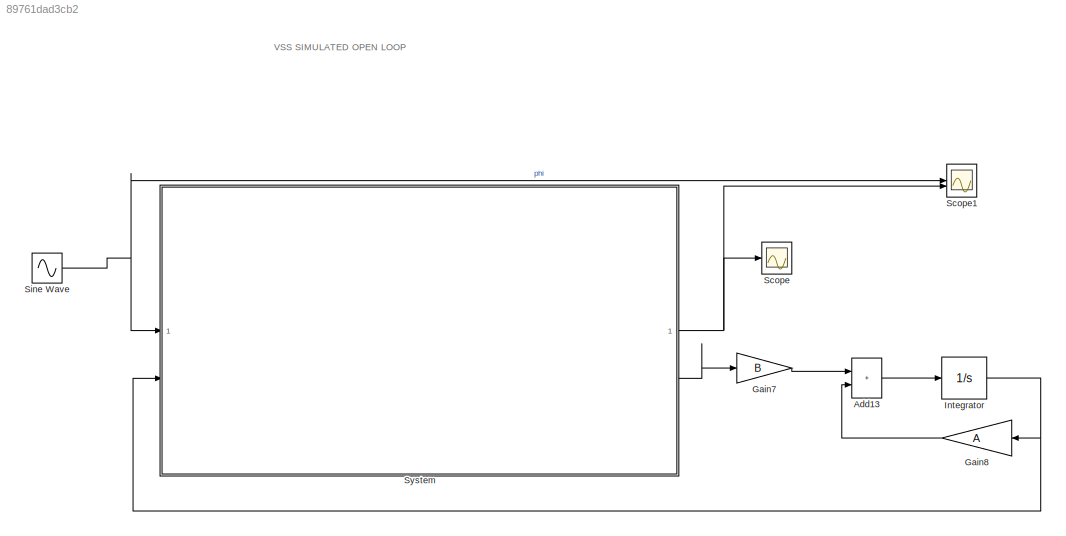
MODEL slx_89761dad3cb2
KIND model
CONFIG AbsTol = auto
CONFIG EnableMultiTasking = off
CONFIG FixedStep = 0.001
CONFIG MaxStep = auto
CONFIG MinStep = auto
CONFIG RelTol = 1e-7
CONFIG SampleTimeConstraint = Unconstrained
CONFIG SolverName = VariableStepAuto
CONFIG StartTime = 0.0
CONFIG StopTime = 10.0
BLOCK [Sum] Add13
  IconShape = rectangular
BLOCK [Gain] Gain7
  Gain = B
  Multiplication = Matrix(K*u)
BLOCK [Gain] Gain8
  Gain = A
  Multiplication = Matrix(K*u)
BLOCK [Integrator] Integrator
  InitialCondition = [0;0;-1.81;0;0;0]
BLOCK [Scope] Scope
  Floating = off
  NumInputPorts = 1
  ScopeSpecificationString = Simulink.scopes.TimeScopeBlockCfg('CurrentConfiguration', extmgr.ConfigurationSet(extmgr.Configuration('Core','General UI',true),extmgr.Configuration('Core','Source UI',true),extmgr.Configuration('Sources','WiredSimulink',true,'DataLoggingVariableName','ScopeData1'),extmgr.Configuration('Visuals','Time Domain',true,'TimeAxisLabels','All','SerializedDisplays',{struct('MinYLimReal','-1.85866','MaxYL...<+1558ch>
BLOCK [Scope] Scope1
  Floating = off
  NumInputPorts = 2
  ScopeSpecificationString = Simulink.scopes.TimeScopeBlockCfg('CurrentConfiguration', extmgr.ConfigurationSet(extmgr.Configuration('Core','General UI',true),extmgr.Configuration('Core','Source UI',true),extmgr.Configuration('Sources','WiredSimulink',true,'DataLoggingVariableName','ScopeData1'),extmgr.Configuration('Visuals','Time Domain',true,'TimeAxisLabels','All','SerializedDisplays',{struct('MinYLimReal','-2.25359','MaxYL...<+1612ch>
BLOCK [Sin] Sine Wave
  Amplitude = pi/2
  Frequency = 2*pi*0.5
  SampleTime = 0
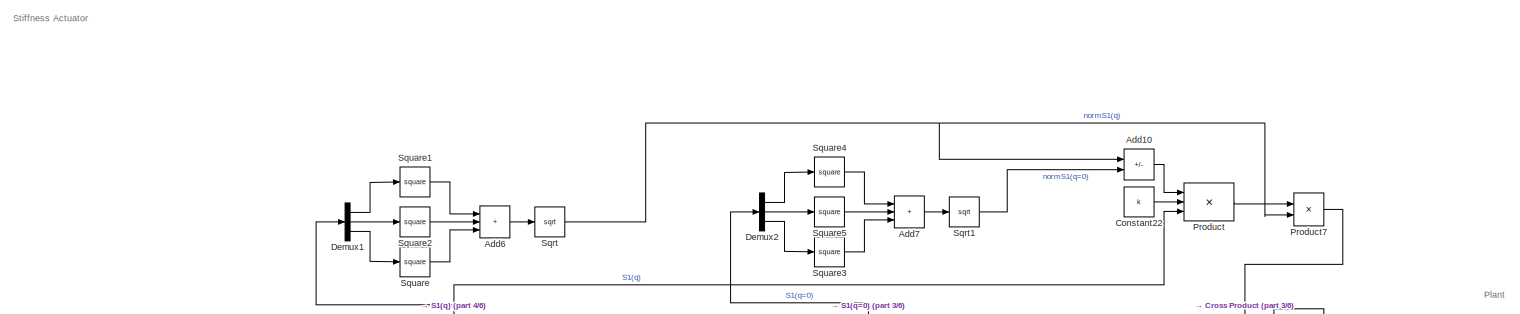
[diagram: System - part 1/6, top center region]
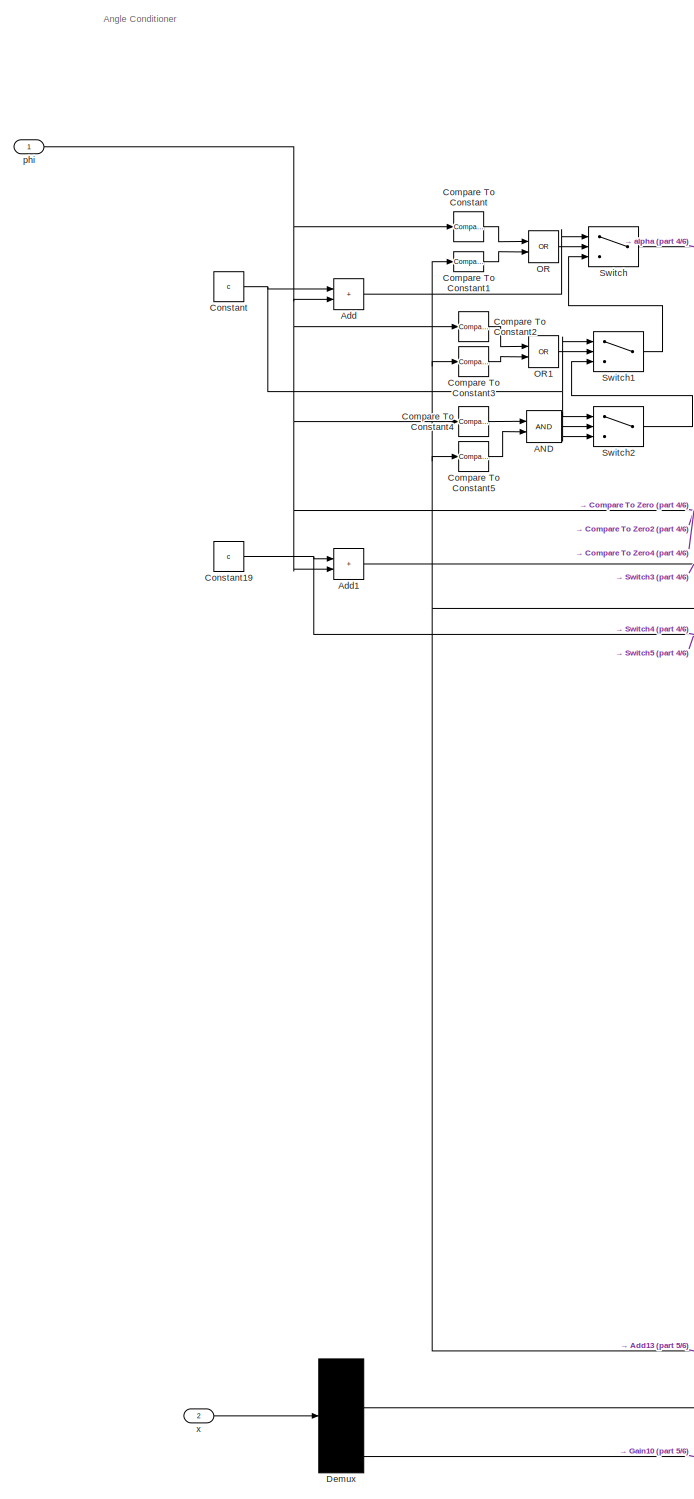
[diagram: System - part 2/6, left side, full height]
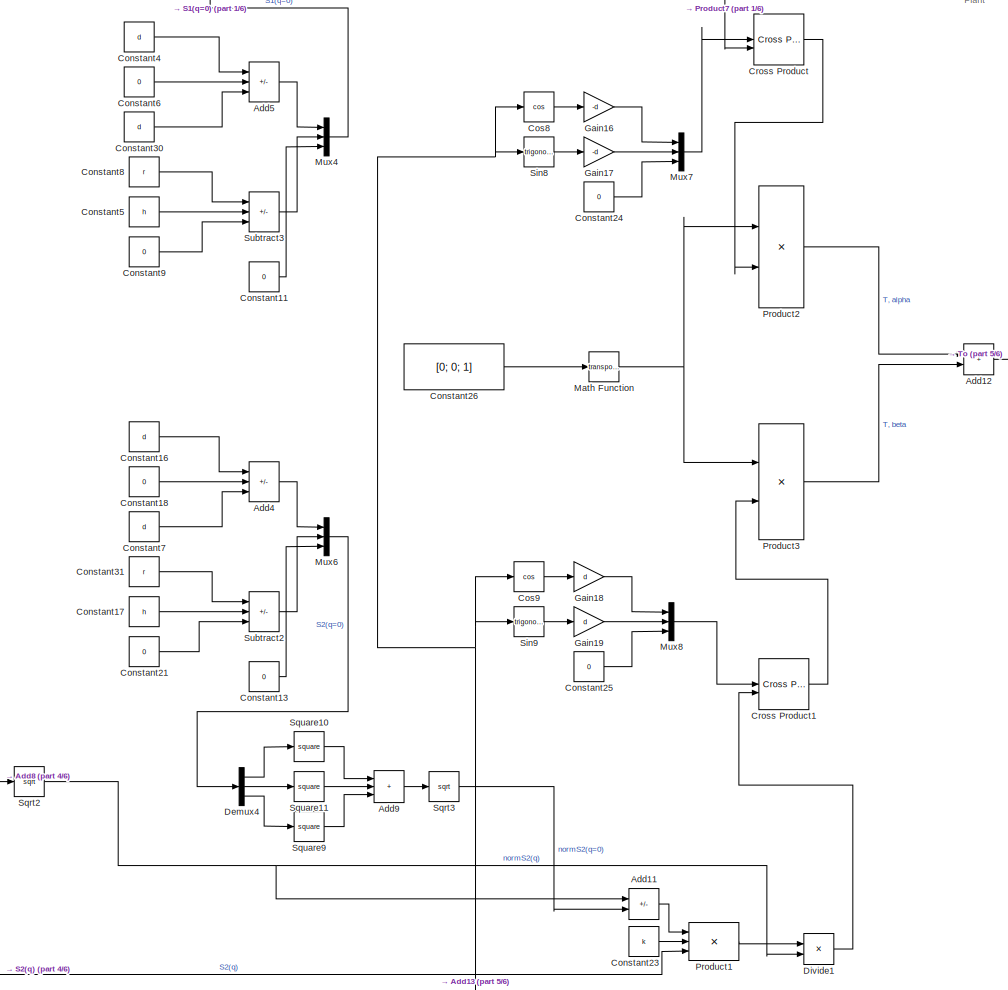
[diagram: System - part 3/6, central region]
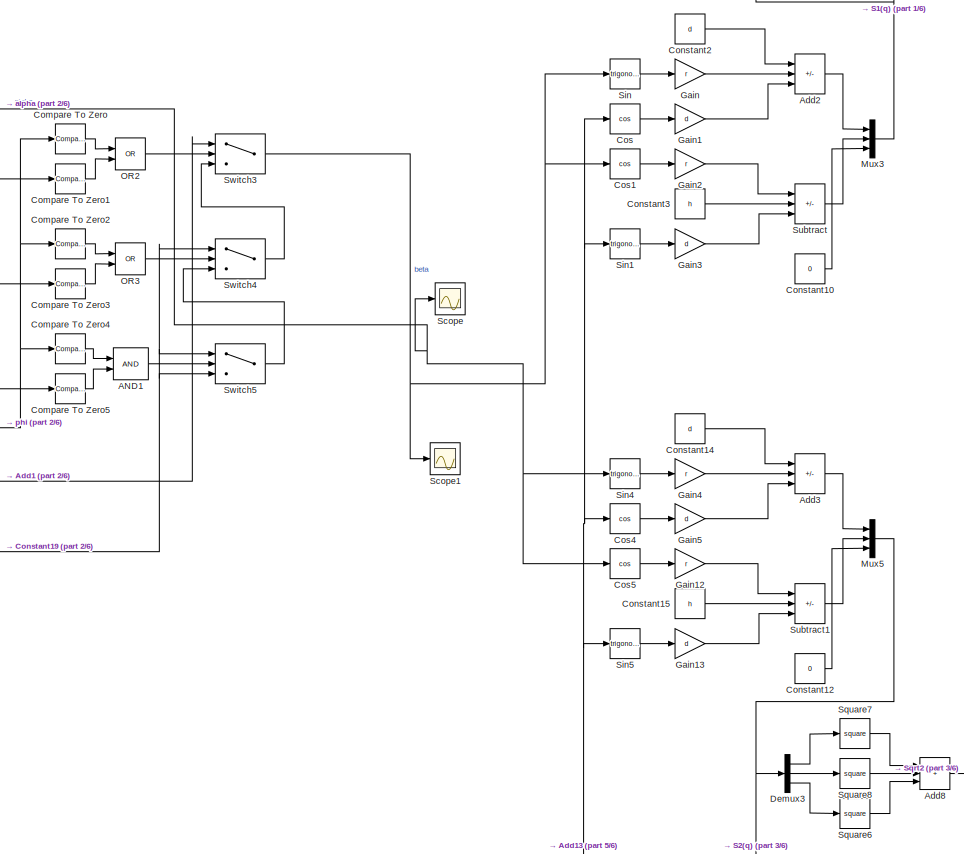
[diagram: System - part 4/6, central region]
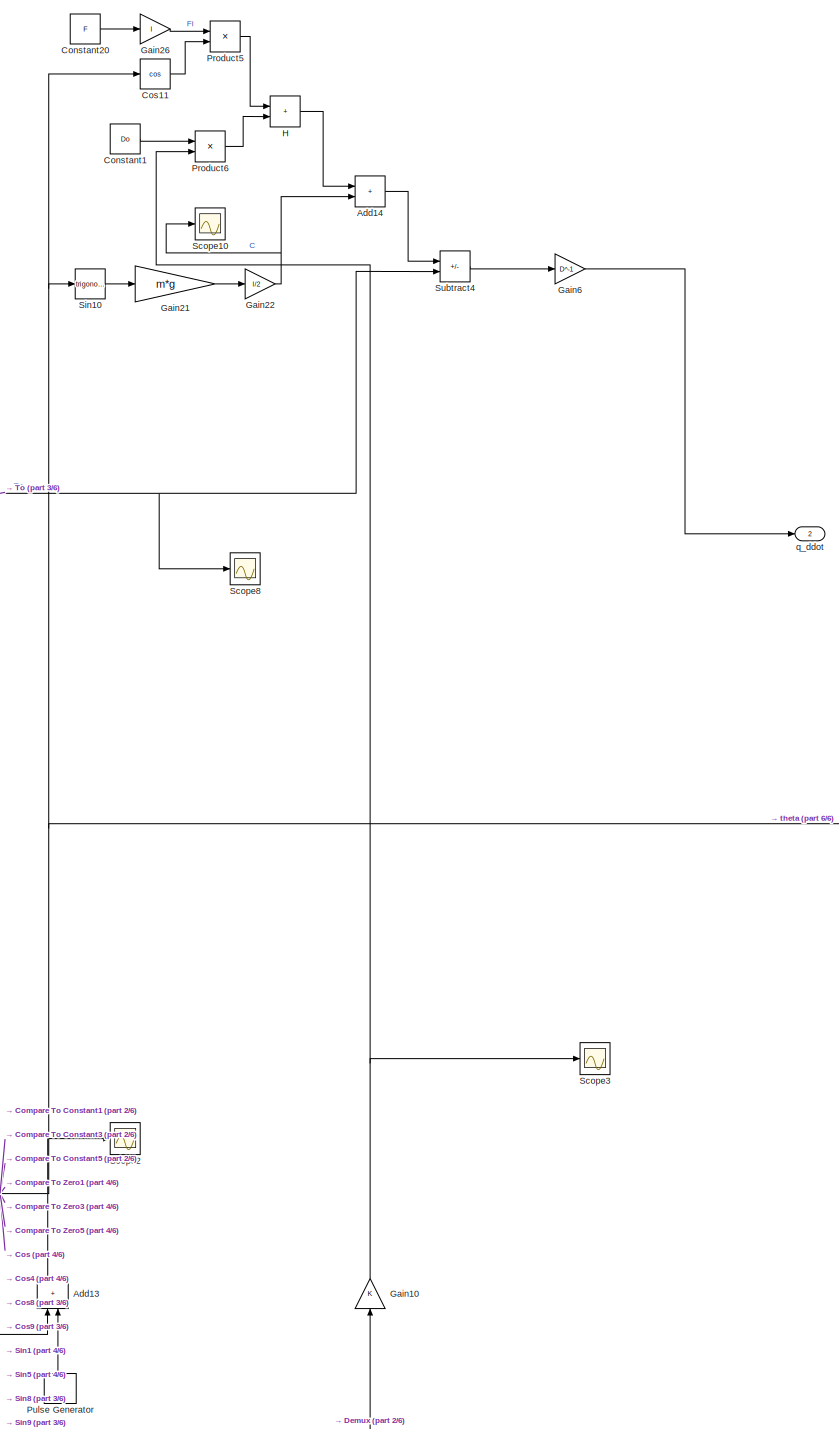
[diagram: System - part 5/6, middle right region]
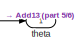
[diagram: System - part 6/6, middle right region]
BLOCK [SubSystem] System
BLOCK [Logic] System/AND
  AllPortsSameDT = off
  IconShape = distinctive
  OutDataTypeStr = boolean
BLOCK [Logic] System/AND1
  AllPortsSameDT = off
  IconShape = distinctive
  OutDataTypeStr = boolean
BLOCK [Sum] System/Add
  IconShape = rectangular
BLOCK [Sum] System/Add1
  IconShape = rectangular
BLOCK [Sum] System/Add10
  IconShape = rectangular
  Inputs = +-
BLOCK [Sum] System/Add11
  IconShape = rectangular
  Inputs = +-
BLOCK [Sum] System/Add12
  IconShape = rectangular
BLOCK [Sum] System/Add13
  IconShape = rectangular
  NameLocation = right
BLOCK [Sum] System/Add14
  IconShape = rectangular
BLOCK [Sum] System/Add2
  IconShape = rectangular
  Inputs = ++-
BLOCK [Sum] System/Add3
  IconShape = rectangular
  Inputs = --+
BLOCK [Sum] System/Add4
  IconShape = rectangular
  Inputs = --+
BLOCK [Sum] System/Add5
  IconShape = rectangular
  Inputs = ++-
BLOCK [Sum] System/Add6
  IconShape = rectangular
  Inputs = +++
BLOCK [Sum] System/Add7
  IconShape = rectangular
  Inputs = +++
BLOCK [Sum] System/Add8
  IconShape = rectangular
  Inputs = +++
BLOCK [Sum] System/Add9
  IconShape = rectangular
  Inputs = +++
BLOCK [Reference] System/Compare To Constant  REF=simulink/Logic and Bit
Operations/Compare
To Constant
  SourceBlock = simulink/Logic and Bit\nOperations/Compare\nTo Constant
  SourceType = Compare To Constant
BLOCK [Reference] System/Compare To Constant1  REF=simulink/Logic and Bit
Operations/Compare
To Constant
  SourceBlock = simulink/Logic and Bit\nOperations/Compare\nTo Constant
  SourceType = Compare To Constant
BLOCK [Reference] System/Compare To Constant2  REF=simulink/Logic and Bit
Operations/Compare
To Constant
  SourceBlock = simulink/Logic and Bit\nOperations/Compare\nTo Constant
  SourceType = Compare To Constant
BLOCK [Reference] System/Compare To Constant3  REF=simulink/Logic and Bit
Operations/Compare
To Constant
  SourceBlock = simulink/Logic and Bit\nOperations/Compare\nTo Constant
  SourceType = Compare To Constant
BLOCK [Reference] System/Compare To Constant4  REF=simulink/Logic and Bit
Operations/Compare
To Constant
  SourceBlock = simulink/Logic and Bit\nOperations/Compare\nTo Constant
  SourceType = Compare To Constant
BLOCK [Reference] System/Compare To Constant5  REF=simulink/Logic and Bit
Operations/Compare
To Constant
  SourceBlock = simulink/Logic and Bit\nOperations/Compare\nTo Constant
  SourceType = Compare To Constant
BLOCK [Reference] System/Compare To Zero  REF=simulink/Logic and Bit
Operations/Compare
To Zero
  SourceBlock = simulink/Logic and Bit\nOperations/Compare\nTo Zero
  SourceType = Compare To Zero
BLOCK [Reference] System/Compare To Zero1  REF=simulink/Logic and Bit
Operations/Compare
To Zero
  SourceBlock = simulink/Logic and Bit\nOperations/Compare\nTo Zero
  SourceType = Compare To Zero
BLOCK [Reference] System/Compare To Zero2  REF=simulink/Logic and Bit
Operations/Compare
To Zero
  SourceBlock = simulink/Logic and Bit\nOperations/Compare\nTo Zero
  SourceType = Compare To Zero
BLOCK [Reference] System/Compare To Zero3  REF=simulink/Logic and Bit
Operations/Compare
To Zero
  SourceBlock = simulink/Logic and Bit\nOperations/Compare\nTo Zero
  SourceType = Compare To Zero
BLOCK [Reference] System/Compare To Zero4  REF=simulink/Logic and Bit
Operations/Compare
To Zero
  SourceBlock = simulink/Logic and Bit\nOperations/Compare\nTo Zero
  SourceType = Compare To Zero
BLOCK [Reference] System/Compare To Zero5  REF=simulink/Logic and Bit
Operations/Compare
To Zero
  SourceBlock = simulink/Logic and Bit\nOperations/Compare\nTo Zero
  SourceType = Compare To Zero
BLOCK [Constant] System/Constant
  Value = c
BLOCK [Constant] System/Constant1
  Value = Do
BLOCK [Constant] System/Constant10
  Value = 0
BLOCK [Constant] System/Constant11
  Value = 0
BLOCK [Constant] System/Constant12
  Value = 0
BLOCK [Constant] System/Constant13
  Value = 0
BLOCK [Constant] System/Constant14
  Value = d
BLOCK [Constant] System/Constant15
  Value = h
BLOCK [Constant] System/Constant16
  Value = d
BLOCK [Constant] System/Constant17
  Value = h
BLOCK [Constant] System/Constant18
  Value = 0
BLOCK [Constant] System/Constant19
  Value = c
BLOCK [Constant] System/Constant2
  Value = d
BLOCK [Constant] System/Constant20
  Value = F
BLOCK [Constant] System/Constant21
  Value = 0
BLOCK [Constant] System/Constant22
  Value = k
BLOCK [Constant] System/Constant23
  Value = k
BLOCK [Constant] System/Constant24
  Value = 0
BLOCK [Constant] System/Constant25
  Value = 0
BLOCK [Constant] System/Constant26
  Value = [0; 0; 1]
BLOCK [Constant] System/Constant3
  Value = h
BLOCK [Constant] System/Constant30
  Value = d
BLOCK [Constant] System/Constant31
  Value = r
BLOCK [Constant] System/Constant4
  Value = d
BLOCK [Constant] System/Constant5
  Value = h
BLOCK [Constant] System/Constant6
  Value = 0
BLOCK [Constant] System/Constant7
  Value = d
BLOCK [Constant] System/Constant8
  Value = r
BLOCK [Constant] System/Constant9
  Value = 0
BLOCK [Trigonometry] System/Cos
  Operator = cos
BLOCK [Trigonometry] System/Cos1
  Operator = cos
BLOCK [Trigonometry] System/Cos11
  Operator = cos
BLOCK [Trigonometry] System/Cos4
  Operator = cos
BLOCK [Trigonometry] System/Cos5
  Operator = cos
BLOCK [Trigonometry] System/Cos8
  Operator = cos
BLOCK [Trigonometry] System/Cos9
  Operator = cos
BLOCK [Reference] System/Cross Product  REF=matrix_library/Cross Product
  LibrarySourceBlock = simulink/Matrix\nOperations/Cross Product
  SourceBlock = matrix_library/Cross Product
  SourceType = CrossProduct
BLOCK [Reference] System/Cross Product1  REF=matrix_library/Cross Product
  LibrarySourceBlock = simulink/Matrix\nOperations/Cross Product
  SourceBlock = matrix_library/Cross Product
  SourceType = CrossProduct
BLOCK [Demux] System/Demux
  Outputs = 6
BLOCK [Demux] System/Demux1
  Outputs = 3
BLOCK [Demux] System/Demux2
  Outputs = 3
BLOCK [Demux] System/Demux3
  Outputs = 3
BLOCK [Demux] System/Demux4
  Outputs = 3
BLOCK [Product] System/Divide1
  Inputs = */
BLOCK [Gain] System/Gain
  Gain = r
BLOCK [Gain] System/Gain1
  Gain = d
BLOCK [Gain] System/Gain10
  NameLocation = left
BLOCK [Gain] System/Gain12
  Gain = r
BLOCK [Gain] System/Gain13
  Gain = d
BLOCK [Gain] System/Gain16
  Gain = -d
BLOCK [Gain] System/Gain17
  Gain = -d
BLOCK [Gain] System/Gain18
  Gain = d
BLOCK [Gain] System/Gain19
  Gain = d
BLOCK [Gain] System/Gain2
  Gain = r
BLOCK [Gain] System/Gain21
  Gain = m*g
BLOCK [Gain] System/Gain22
  Gain = l/2
BLOCK [Gain] System/Gain26
  Gain = l
BLOCK [Gain] System/Gain3
  Gain = d
BLOCK [Gain] System/Gain4
  Gain = r
BLOCK [Gain] System/Gain5
  Gain = d
BLOCK [Gain] System/Gain6
  Gain = D^-1
BLOCK [Sum] System/H
  IconShape = rectangular
BLOCK [Math] System/Math Function
  Operator = transpose
BLOCK [Mux] System/Mux3
  DisplayOption = bar
  Inputs = 3
BLOCK [Mux] System/Mux4
  DisplayOption = bar
  Inputs = 3
BLOCK [Mux] System/Mux5
  DisplayOption = bar
  Inputs = 3
BLOCK [Mux] System/Mux6
  DisplayOption = bar
  Inputs = 3
BLOCK [Mux] System/Mux7
  DisplayOption = bar
  Inputs = 3
BLOCK [Mux] System/Mux8
  DisplayOption = bar
  Inputs = 3
BLOCK [Logic] System/OR
  AllPortsSameDT = off
  IconShape = distinctive
  Operator = OR
  OutDataTypeStr = boolean
BLOCK [Logic] System/OR1
  AllPortsSameDT = off
  IconShape = distinctive
  Operator = OR
  OutDataTypeStr = boolean
BLOCK [Logic] System/OR2
  AllPortsSameDT = off
  IconShape = distinctive
  Operator = OR
  OutDataTypeStr = boolean
BLOCK [Logic] System/OR3
  AllPortsSameDT = off
  IconShape = distinctive
  Operator = OR
  OutDataTypeStr = boolean
BLOCK [Product] System/Product
  Inputs = 3
BLOCK [Product] System/Product1
  Inputs = 3
BLOCK [Product] System/Product2
  Multiplication = Matrix(*)
BLOCK [Product] System/Product3
  Multiplication = Matrix(*)
BLOCK [Product] System/Product5
BLOCK [Product] System/Product6
BLOCK [Product] System/Product7
  Inputs = */
BLOCK [DiscretePulseGenerator] System/Pulse Generator
  Amplitude = 0.02
  NameLocation = right
  Period = 2.5
  PulseType = Time based
  PulseWidth = 0.5
BLOCK [Scope] System/Scope
  Floating = off
  NumInputPorts = 1
  ScopeSpecificationString = Simulink.scopes.TimeScopeBlockCfg('CurrentConfiguration', extmgr.ConfigurationSet(extmgr.Configuration('Core','General UI',true),extmgr.Configuration('Core','Source UI',true),extmgr.Configuration('Sources','WiredSimulink',true,'DataLoggingVariableName','ScopeData3'),extmgr.Configuration('Visuals','Time Domain',true,'SerializedDisplays',{struct('MinYLimReal','1.20016','MaxYLimReal','3.1612','YLabel...<+1477ch>
BLOCK [Scope] System/Scope1
  Floating = off
  NumInputPorts = 1
  ScopeSpecificationString = Simulink.scopes.TimeScopeBlockCfg('CurrentConfiguration', extmgr.ConfigurationSet(extmgr.Configuration('Core','General UI',true),extmgr.Configuration('Core','Source UI',true),extmgr.Configuration('Sources','WiredSimulink',true,'DataLoggingVariableName','ScopeData4'),extmgr.Configuration('Visuals','Time Domain',true,'SerializedDisplays',{struct('MinYLimReal','-0.37087','MaxYLimReal','1.59261','YLab...<+1482ch>
BLOCK [Scope] System/Scope10
  Floating = off
  NumInputPorts = 1
  ScopeSpecificationString = Simulink.scopes.TimeScopeBlockCfg('CurrentConfiguration', extmgr.ConfigurationSet(extmgr.Configuration('Core','General UI',true),extmgr.Configuration('Core','Source UI',true),extmgr.Configuration('Sources','WiredSimulink',true,'DataLoggingVariableName','ScopeData8'),extmgr.Configuration('Visuals','Time Domain',true,'SerializedDisplays',{struct('MinYLimReal','-0.0000025','MaxYLimReal','0.0000061','...<+1500ch>
BLOCK [Scope] System/Scope2
  Floating = off
  NumInputPorts = 1
  ScopeSpecificationString = Simulink.scopes.TimeScopeBlockCfg('CurrentConfiguration', extmgr.ConfigurationSet(extmgr.Configuration('Core','General UI',true),extmgr.Configuration('Core','Source UI',true),extmgr.Configuration('Sources','WiredSimulink',true,'DataLoggingVariableName','ScopeData1'),extmgr.Configuration('Visuals','Time Domain',true,'SerializedDisplays',{struct('MinYLimReal','-1.00000','MaxYLimReal','1.00000','YLab...<+1483ch>
BLOCK [Scope] System/Scope3
  Floating = off
  NumInputPorts = 1
  ScopeSpecificationString = Simulink.scopes.TimeScopeBlockCfg('CurrentConfiguration', extmgr.ConfigurationSet(extmgr.Configuration('Core','General UI',true),extmgr.Configuration('Core','Source UI',true),extmgr.Configuration('Sources','WiredSimulink',true,'DataLoggingVariableName','ScopeData2'),extmgr.Configuration('Visuals','Time Domain',true,'SerializedDisplays',{struct('MinYLimReal','-1.00000','MaxYLimReal','1.00000','YLab...<+1484ch>
BLOCK [Scope] System/Scope8
  Floating = off
  NumInputPorts = 1
  ScopeSpecificationString = Simulink.scopes.TimeScopeBlockCfg('CurrentConfiguration', extmgr.ConfigurationSet(extmgr.Configuration('Core','General UI',true),extmgr.Configuration('Core','Source UI',true),extmgr.Configuration('Sources','WiredSimulink',true,'DataLoggingVariableName','ScopeData6'),extmgr.Configuration('Visuals','Time Domain',true,'TimeAxisLabels','All','SerializedDisplays',{struct('MinYLimReal','-0.00741','MaxYL...<+1550ch>
BLOCK [Trigonometry] System/Sin
BLOCK [Trigonometry] System/Sin1
BLOCK [Trigonometry] System/Sin10
BLOCK [Trigonometry] System/Sin4
BLOCK [Trigonometry] System/Sin5
BLOCK [Trigonometry] System/Sin8
BLOCK [Trigonometry] System/Sin9
BLOCK [Sqrt] System/Sqrt
BLOCK [Sqrt] System/Sqrt1
BLOCK [Sqrt] System/Sqrt2
BLOCK [Sqrt] System/Sqrt3
BLOCK [Math] System/Square
  Operator = square
BLOCK [Math] System/Square1
  Operator = square
BLOCK [Math] System/Square10
  Operator = square
BLOCK [Math] System/Square11
  Operator = square
BLOCK [Math] System/Square2
  Operator = square
BLOCK [Math] System/Square3
  Operator = square
BLOCK [Math] System/Square4
  Operator = square
BLOCK [Math] System/Square5
  Operator = square
BLOCK [Math] System/Square6
  Operator = square
BLOCK [Math] System/Square7
  Operator = square
BLOCK [Math] System/Square8
  Operator = square
BLOCK [Math] System/Square9
  Operator = square
BLOCK [Sum] System/Subtract
  IconShape = rectangular
  Inputs = ---
BLOCK [Sum] System/Subtract1
  IconShape = rectangular
  Inputs = --+
BLOCK [Sum] System/Subtract2
  IconShape = rectangular
  Inputs = --+
BLOCK [Sum] System/Subtract3
  IconShape = rectangular
  Inputs = ---
BLOCK [Sum] System/Subtract4
  IconShape = rectangular
  Inputs = -+
BLOCK [Switch] System/Switch
  Criteria = u2 > Threshold
  InputSameDT = off
  SaturateOnIntegerOverflow = off
  Threshold = 0.5
BLOCK [Switch] System/Switch1
  Criteria = u2 > Threshold
  InputSameDT = off
  SaturateOnIntegerOverflow = off
  Threshold = 0.5
BLOCK [Switch] System/Switch2
  Criteria = u2 > Threshold
  InputSameDT = off
  SaturateOnIntegerOverflow = off
  Threshold = 0.5
BLOCK [Switch] System/Switch3
  Criteria = u2 > Threshold
  InputSameDT = off
  SaturateOnIntegerOverflow = off
  Threshold = 0.5
BLOCK [Switch] System/Switch4
  Criteria = u2 > Threshold
  InputSameDT = off
  SaturateOnIntegerOverflow = off
  Threshold = 0.5
BLOCK [Switch] System/Switch5
  Criteria = u2 > Threshold
  InputSameDT = off
  SaturateOnIntegerOverflow = off
  Threshold = 0.5
BLOCK [Inport] System/phi
BLOCK [Outport] System/q_ddot
  Port = 2
BLOCK [Outport] System/theta
BLOCK [Inport] System/x
  Port = 2
ANNOTATION (root): VSS SIMULATED OPEN LOOP
ANNOTATION System: Angle Conditioner
ANNOTATION System: Plant
ANNOTATION System: Stiffness Actuator
LINE Add13:1 -> Integrator:1
LINE Gain7:1 -> Add13:1
LINE Gain8:1 -> Add13:2
NET Integrator:1 -> Gain8:1, System:2
NET Sine Wave:1 -> Scope1:1, System:1
LINE System/AND1:1 -> System/Switch5:2
LINE System/AND:1 -> System/Switch2:2
LINE System/Add10:1 -> System/Product:1
LINE System/Add11:1 -> System/Product1:1
NET System/Add12:1 -> System/Scope8:1, System/Subtract4:2
NET System/Add13:1 -> System/Compare To Constant1:1, System/Compare To Constant3:1, System/Compare To Constant5:1, System/Compare To Zero1:1, System/Compare To Zero3:1, System/Compare To Zero5:1, System/Cos11:1, System/Cos4:1, System/Cos8:1, System/Cos9:1, System/Cos:1, System/Scope2:1, System/Sin10:1, System/Sin1:1, System/Sin5:1, System/Sin8:1, System/Sin9:1, System/theta:1
LINE System/Add14:1 -> System/Subtract4:1
LINE System/Add1:1 -> System/Switch3:1
LINE System/Add2:1 -> System/Mux3:1
LINE System/Add3:1 -> System/Mux5:1
LINE System/Add4:1 -> System/Mux6:1
LINE System/Add5:1 -> System/Mux4:1
LINE System/Add6:1 -> System/Sqrt:1
LINE System/Add7:1 -> System/Sqrt1:1
LINE System/Add8:1 -> System/Sqrt2:1
LINE System/Add9:1 -> System/Sqrt3:1
LINE System/Add:1 -> System/Switch:1
LINE System/Compare To Constant1:1 -> System/OR:2
LINE System/Compare To Constant2:1 -> System/OR1:1
LINE System/Compare To Constant3:1 -> System/OR1:2
LINE System/Compare To Constant4:1 -> System/AND:1
LINE System/Compare To Constant5:1 -> System/AND:2
LINE System/Compare To Constant:1 -> System/OR:1
LINE System/Compare To Zero1:1 -> System/OR2:2
LINE System/Compare To Zero2:1 -> System/OR3:1
LINE System/Compare To Zero3:1 -> System/OR3:2
LINE System/Compare To Zero4:1 -> System/AND1:1
LINE System/Compare To Zero5:1 -> System/AND1:2
LINE System/Compare To Zero:1 -> System/OR2:1
LINE System/Constant10:1 -> System/Mux3:3
LINE System/Constant11:1 -> System/Mux4:3
LINE System/Constant12:1 -> System/Mux5:3
LINE System/Constant13:1 -> System/Mux6:3
LINE System/Constant14:1 -> System/Add3:1
LINE System/Constant15:1 -> System/Subtract1:2
LINE System/Constant16:1 -> System/Add4:1
LINE System/Constant17:1 -> System/Subtract2:2
LINE System/Constant18:1 -> System/Add4:2
NET System/Constant19:1 -> System/Add1:1, System/Switch4:1, System/Switch5:1, System/Switch5:3
LINE System/Constant1:1 -> System/Product6:1
LINE System/Constant20:1 -> System/Gain26:1
LINE System/Constant21:1 -> System/Subtract2:3
LINE System/Constant22:1 -> System/Product:2
LINE System/Constant23:1 -> System/Product1:2
LINE System/Constant24:1 -> System/Mux7:3
LINE System/Constant25:1 -> System/Mux8:3
LINE System/Constant26:1 -> System/Math Function:1
LINE System/Constant2:1 -> System/Add2:1
LINE System/Constant30:1 -> System/Add5:3
LINE System/Constant31:1 -> System/Subtract2:1
LINE System/Constant3:1 -> System/Subtract:2
LINE System/Constant4:1 -> System/Add5:1
LINE System/Constant5:1 -> System/Subtract3:2
LINE System/Constant6:1 -> System/Add5:2
LINE System/Constant7:1 -> System/Add4:3
LINE System/Constant8:1 -> System/Subtract3:1
LINE System/Constant9:1 -> System/Subtract3:3
NET System/Constant:1 -> System/Add:1, System/Switch1:1, System/Switch2:1, System/Switch2:3
LINE System/Cos11:1 -> System/Product5:2
LINE System/Cos1:1 -> System/Gain2:1
LINE System/Cos4:1 -> System/Gain5:1
LINE System/Cos5:1 -> System/Gain12:1
LINE System/Cos8:1 -> System/Gain16:1
LINE System/Cos9:1 -> System/Gain18:1
LINE System/Cos:1 -> System/Gain1:1
LINE System/Cross Product1:1 -> System/Product3:2
LINE System/Cross Product:1 -> System/Product2:2
LINE System/Demux1:1 -> System/Square1:1
LINE System/Demux1:2 -> System/Square2:1
LINE System/Demux1:3 -> System/Square:1
LINE System/Demux2:1 -> System/Square4:1
LINE System/Demux2:2 -> System/Square5:1
LINE System/Demux2:3 -> System/Square3:1
LINE System/Demux3:1 -> System/Square7:1
LINE System/Demux3:2 -> System/Square8:1
LINE System/Demux3:3 -> System/Square6:1
LINE System/Demux4:1 -> System/Square10:1
LINE System/Demux4:2 -> System/Square11:1
LINE System/Demux4:3 -> System/Square9:1
LINE System/Demux:3 -> System/Add13:1
LINE System/Demux:6 -> System/Gain10:1
LINE System/Divide1:1 -> System/Cross Product1:2
NET System/Gain10:1 -> System/Product6:2, System/Scope3:1
LINE System/Gain12:1 -> System/Subtract1:1
LINE System/Gain13:1 -> System/Subtract1:3
LINE System/Gain16:1 -> System/Mux7:1
LINE System/Gain17:1 -> System/Mux7:2
LINE System/Gain18:1 -> System/Mux8:1
LINE System/Gain19:1 -> System/Mux8:2
LINE System/Gain1:1 -> System/Add2:3
LINE System/Gain21:1 -> System/Gain22:1
NET System/Gain22:1 -> System/Add14:2, System/Scope10:1
LINE System/Gain26:1 -> System/Product5:1
LINE System/Gain2:1 -> System/Subtract:1
LINE System/Gain3:1 -> System/Subtract:3
LINE System/Gain4:1 -> System/Add3:2
LINE System/Gain5:1 -> System/Add3:3
LINE System/Gain6:1 -> System/q_ddot:1
LINE System/Gain:1 -> System/Add2:2
LINE System/H:1 -> System/Add14:1
NET System/Math Function:1 -> System/Product2:1, System/Product3:1
NET System/Mux3:1 -> System/Demux1:1, System/Product:3
LINE System/Mux4:1 -> System/Demux2:1
NET System/Mux5:1 -> System/Demux3:1, System/Product1:3
LINE System/Mux6:1 -> System/Demux4:1
LINE System/Mux7:1 -> System/Cross Product:1
LINE System/Mux8:1 -> System/Cross Product1:1
LINE System/OR1:1 -> System/Switch1:2
LINE System/OR2:1 -> System/Switch3:2
LINE System/OR3:1 -> System/Switch4:2
LINE System/OR:1 -> System/Switch:2
LINE System/Product1:1 -> System/Divide1:1
LINE System/Product2:1 -> System/Add12:1
LINE System/Product3:1 -> System/Add12:2
LINE System/Product5:1 -> System/H:1
LINE System/Product6:1 -> System/H:2
LINE System/Product7:1 -> System/Cross Product:2
LINE System/Product:1 -> System/Product7:1
LINE System/Pulse Generator:1 -> System/Add13:2
LINE System/Sin10:1 -> System/Gain21:1
LINE System/Sin1:1 -> System/Gain3:1
LINE System/Sin4:1 -> System/Gain4:1
LINE System/Sin5:1 -> System/Gain13:1
LINE System/Sin8:1 -> System/Gain17:1
LINE System/Sin9:1 -> System/Gain19:1
LINE System/Sin:1 -> System/Gain:1
LINE System/Sqrt1:1 -> System/Add10:2
NET System/Sqrt2:1 -> System/Add11:1, System/Divide1:2
LINE System/Sqrt3:1 -> System/Add11:2
NET System/Sqrt:1 -> System/Add10:1, System/Product7:2
LINE System/Square10:1 -> System/Add9:1
LINE System/Square11:1 -> System/Add9:2
LINE System/Square1:1 -> System/Add6:1
LINE System/Square2:1 -> System/Add6:2
LINE System/Square3:1 -> System/Add7:3
LINE System/Square4:1 -> System/Add7:1
LINE System/Square5:1 -> System/Add7:2
LINE System/Square6:1 -> System/Add8:3
LINE System/Square7:1 -> System/Add8:1
LINE System/Square8:1 -> System/Add8:2
LINE System/Square9:1 -> System/Add9:3
LINE System/Square:1 -> System/Add6:3
LINE System/Subtract1:1 -> System/Mux5:2
LINE System/Subtract2:1 -> System/Mux6:2
LINE System/Subtract3:1 -> System/Mux4:2
LINE System/Subtract4:1 -> System/Gain6:1
LINE System/Subtract:1 -> System/Mux3:2
LINE System/Switch1:1 -> System/Switch:3
LINE System/Switch2:1 -> System/Switch1:3
NET System/Switch3:1 -> System/Cos1:1, System/Scope1:1, System/Sin:1
LINE System/Switch4:1 -> System/Switch3:3
LINE System/Switch5:1 -> System/Switch4:3
NET System/Switch:1 -> System/Cos5:1, System/Scope:1, System/Sin4:1
NET System/phi:1 -> System/Add1:2, System/Add:2, System/Compare To Constant2:1, System/Compare To Constant4:1, System/Compare To Constant:1, System/Compare To Zero2:1, System/Compare To Zero4:1, System/Compare To Zero:1
LINE System/x:1 -> System/Demux:1
NET System:1 -> Scope1:2, Scope:1
LINE System:2 -> Gain7:1
note: NET lines group one-source signal fan-out (src -> all destinations, sorted); 1:1 wires keep LINE
